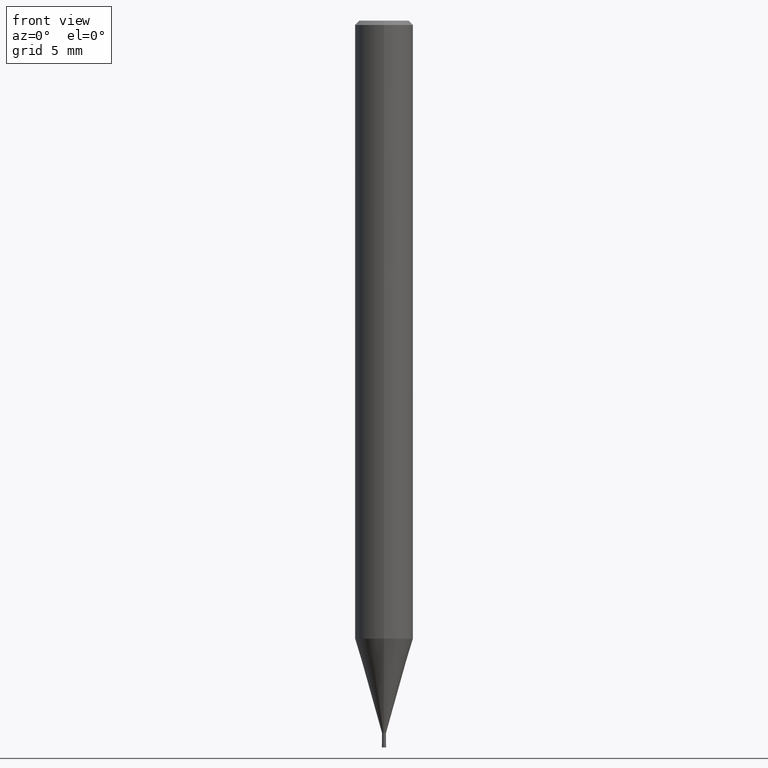
[diagram: clean part render]
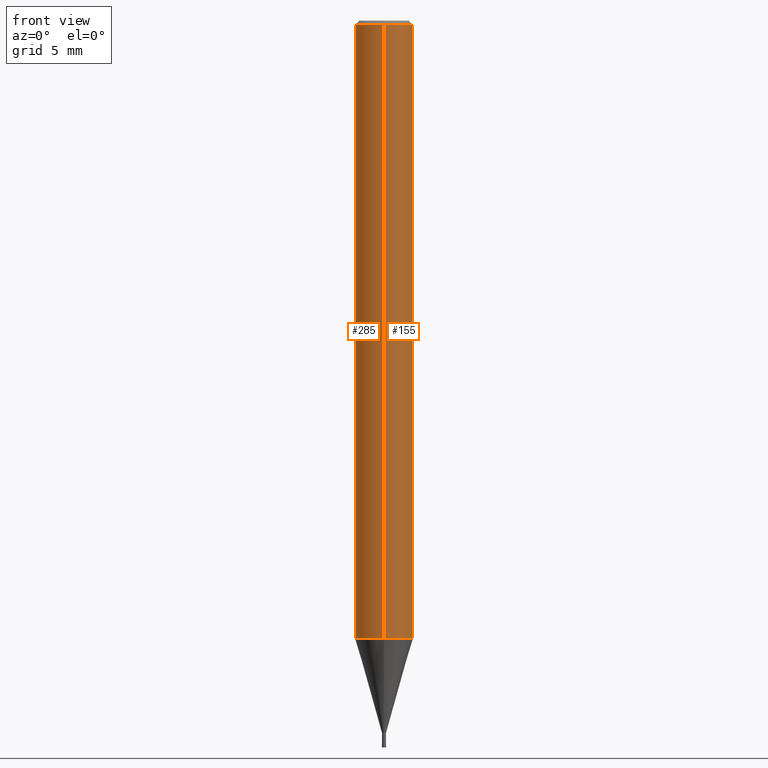
[diagram: same view with one multi-face feature highlighted, each face labeled with its STEP entity id]
A machine part, front view. The highlighted faces form ONE feature: a constant-radius fillet chain: 2 tangent blend faces with common blend radius 2 mm. The faces share edges in the B-rep.
Their STEP definitions:
[1] entity #155 (Cylinder):
#155=ADVANCED_FACE('',(#394),#395,.T.);
#171=VERTEX_POINT('',#413);
#235=EDGE_CURVE('',#311,#171,#483,.T.);
#245=VERTEX_POINT('',#493);
#289=EDGE_CURVE('',#299,#311,#545,.T.);
#299=VERTEX_POINT('',#556);
#311=VERTEX_POINT('',#571);
#321=EDGE_CURVE('',#299,#245,#583,.T.);
#355=EDGE_CURVE('',#171,#245,#620,.T.);
#394=FACE_OUTER_BOUND('',#657,.T.);
#395=CYLINDRICAL_SURFACE('',#658,2.0);
#413=CARTESIAN_POINT('',(2.44921270764475E-016,-2.0,-42.503));
#483=CIRCLE('',#771,2.0);
#493=CARTESIAN_POINT('',(2.44921270764475E-016,-2.0,-0.289999999999999));
#545=LINE('',#849,#850);
#556=CARTESIAN_POINT('',(0.0,2.0,-0.289999999999999));
#571=CARTESIAN_POINT('',(0.0,2.0,-42.503));
#583=CIRCLE('',#895,2.0);
#620=LINE('',#942,#943);
#657=EDGE_LOOP('',(#978,#979,#980,#981));
#658=AXIS2_PLACEMENT_3D('',#982,#983,#984);
#771=AXIS2_PLACEMENT_3D('',#1091,#1092,#1093);
#849=CARTESIAN_POINT('',(-2.44921270764475E-016,2.0,-21.3965));
#850=VECTOR('',#1180,1.0);
#895=AXIS2_PLACEMENT_3D('',#1233,#1234,#1235);
#942=CARTESIAN_POINT('',(2.44921270764475E-016,-2.0,-21.3965));
#943=VECTOR('',#1264,1.0);
#978=ORIENTED_EDGE('',*,*,#289,.F.);
#979=ORIENTED_EDGE('',*,*,#321,.T.);
#980=ORIENTED_EDGE('',*,*,#355,.F.);
#981=ORIENTED_EDGE('',*,*,#235,.F.);
#982=CARTESIAN_POINT('',(0.0,0.0,-21.3965));
#983=DIRECTION('',(-0.0,-0.0,1.0));
#984=DIRECTION('',(0.0,1.0,0.0));
#1091=CARTESIAN_POINT('',(0.0,0.0,-42.503));
#1092=DIRECTION('',(0.0,0.0,-1.0));
#1093=DIRECTION('',(0.0,1.0,0.0));
#1180=DIRECTION('',(0.0,0.0,-1.0));
#1233=CARTESIAN_POINT('',(0.0,0.0,-0.289999999999999));
#1234=DIRECTION('',(0.0,0.0,-1.0));
#1235=DIRECTION('',(0.0,1.0,0.0));
#1264=DIRECTION('',(-0.0,-0.0,1.0));
[2] entity #285 (Cylinder):
#171=VERTEX_POINT('',#413);
#245=VERTEX_POINT('',#493);
#277=EDGE_CURVE('',#171,#311,#529,.T.);
#285=ADVANCED_FACE('',(#540),#541,.T.);
#289=EDGE_CURVE('',#299,#311,#545,.T.);
#299=VERTEX_POINT('',#556);
#311=VERTEX_POINT('',#571);
#317=EDGE_CURVE('',#245,#299,#579,.T.);
#355=EDGE_CURVE('',#171,#245,#620,.T.);
#413=CARTESIAN_POINT('',(2.44921270764475E-016,-2.0,-42.503));
#493=CARTESIAN_POINT('',(2.44921270764475E-016,-2.0,-0.289999999999999));
#529=CIRCLE('',#831,2.0);
#540=FACE_OUTER_BOUND('',#842,.T.);
#541=CYLINDRICAL_SURFACE('',#843,2.0);
#545=LINE('',#849,#850);
#556=CARTESIAN_POINT('',(0.0,2.0,-0.289999999999999));
#571=CARTESIAN_POINT('',(0.0,2.0,-42.503));
#579=CIRCLE('',#891,2.0);
#620=LINE('',#942,#943);
#831=AXIS2_PLACEMENT_3D('',#1150,#1151,#1152);
#842=EDGE_LOOP('',(#1170,#1171,#1172,#1173));
#843=AXIS2_PLACEMENT_3D('',#1174,#1175,#1176);
#849=CARTESIAN_POINT('',(-2.44921270764475E-016,2.0,-21.3965));
#850=VECTOR('',#1180,1.0);
#891=AXIS2_PLACEMENT_3D('',#1229,#1230,#1231);
#942=CARTESIAN_POINT('',(2.44921270764475E-016,-2.0,-21.3965));
#943=VECTOR('',#1264,1.0);
#1150=CARTESIAN_POINT('',(0.0,0.0,-42.503));
#1151=DIRECTION('',(0.0,0.0,-1.0));
#1152=DIRECTION('',(0.0,1.0,0.0));
#1170=ORIENTED_EDGE('',*,*,#289,.T.);
#1171=ORIENTED_EDGE('',*,*,#277,.F.);
#1172=ORIENTED_EDGE('',*,*,#355,.T.);
#1173=ORIENTED_EDGE('',*,*,#317,.T.);
#1174=CARTESIAN_POINT('',(0.0,0.0,-21.3965));
#1175=DIRECTION('',(-0.0,-0.0,1.0));
#1176=DIRECTION('',(0.0,1.0,0.0));
#1180=DIRECTION('',(0.0,0.0,-1.0));
#1229=CARTESIAN_POINT('',(0.0,0.0,-0.289999999999999));
#1230=DIRECTION('',(0.0,0.0,-1.0));
#1231=DIRECTION('',(0.0,1.0,0.0));
#1264=DIRECTION('',(-0.0,-0.0,1.0));